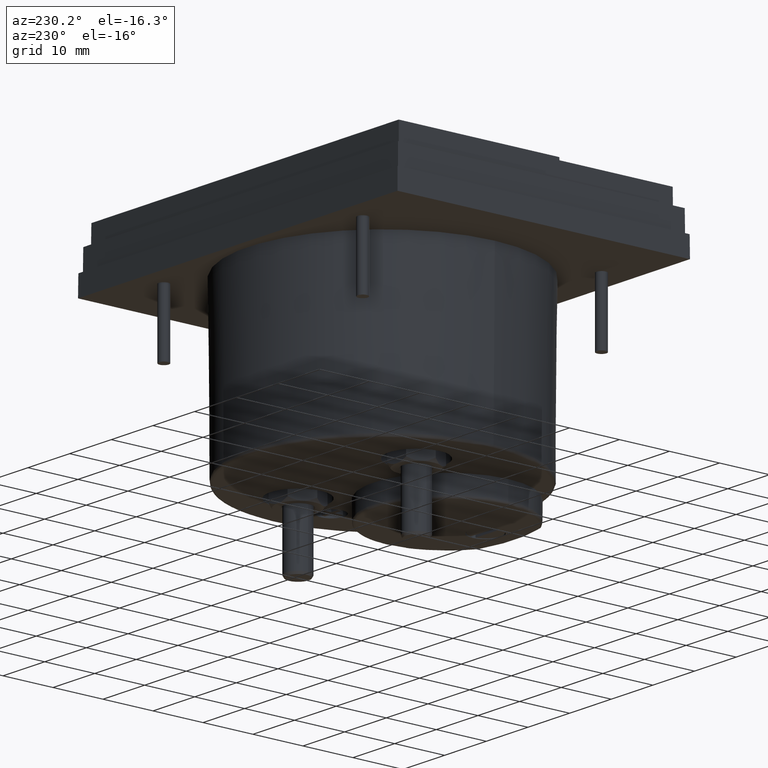
[diagram: clean part render]
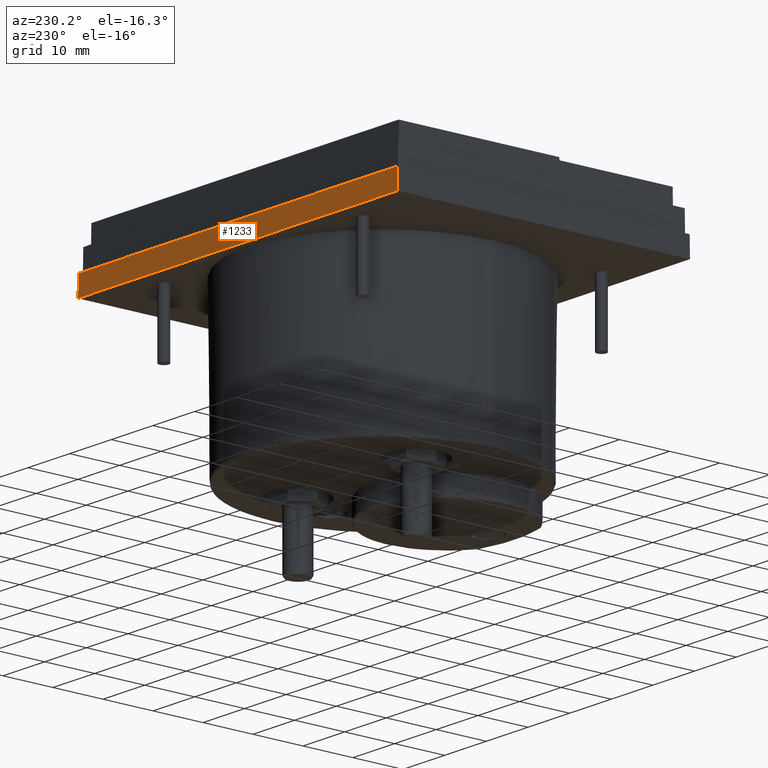
[diagram: same view with one face highlighted and labeled with its STEP entity id]
A machine part, auxiliary view. The second image highlights one B-rep face of the part: STEP entity #1233.
In plain terms, the highlighted planar face has unit normal (-0, 1, 0.0087).
Its self-contained STEP definition (entity closure, byte-faithful):
#65 = ORIENTED_EDGE ( 'NONE', *, *, #501, .F. ) ;
#403 = CARTESIAN_POINT ( 'NONE',  ( 1.509842519685039575, 1.956692913385826849, -0.2732283464566929720 ) ) ;
#501 = EDGE_CURVE ( 'NONE', #948, #4471, #1316, .T. ) ;
#518 = CARTESIAN_POINT ( 'NONE',  ( 1.456692913385826849, 1.956692913385826849, -0.2732283464566925280 ) ) ;
#633 = VECTOR ( 'NONE', #1328, 39.37007874015748854 ) ;
#643 = VERTEX_POINT ( 'NONE', #1941 ) ;
#662 = ORIENTED_EDGE ( 'NONE', *, *, #1028, .T. ) ;
#774 = PLANE ( 'NONE',  #5720 ) ;
#840 = LINE ( 'NONE', #2677, #633 ) ;
#948 = VERTEX_POINT ( 'NONE', #4515 ) ;
#966 = DIRECTION ( 'NONE',  ( 1.000000000000000000, 0.000000000000000000, 0.000000000000000000 ) ) ;
#1028 = EDGE_CURVE ( 'NONE', #948, #643, #3148, .T. ) ;
#1097 = ORIENTED_EDGE ( 'NONE', *, *, #4811, .F. ) ;
#1233 = ADVANCED_FACE ( 'NONE', ( #4105 ), #774, .T. ) ;
#1316 = LINE ( 'NONE', #518, #2622 ) ;
#1328 = DIRECTION ( 'NONE',  ( -0.008726203243943650087, -0.008726203243934976470, 0.9999238504775705971 ) ) ;
#1431 = DIRECTION ( 'NONE',  ( 1.000000000000000000, -0.000000000000000000, 0.000000000000000000 ) ) ;
#1941 = CARTESIAN_POINT ( 'NONE',  ( -1.508468209796730131, 1.955318603497519625, -0.1157480314960626228 ) ) ;
#2591 = DIRECTION ( 'NONE',  ( -0.000000000000000000, 0.9999619230641713097, 0.008726535498373936411 ) ) ;
#2622 = VECTOR ( 'NONE', #1431, 39.37007874015748143 ) ;
#2677 = CARTESIAN_POINT ( 'NONE',  ( 1.509842519685039575, 1.956692913385826849, -0.2732283464566929720 ) ) ;
#2949 = EDGE_CURVE ( 'NONE', #643, #3204, #4301, .T. ) ;
#2998 = EDGE_LOOP ( 'NONE', ( #1097, #65, #662, #5877 ) ) ;
#3041 = VECTOR ( 'NONE', #966, 39.37007874015748143 ) ;
#3148 = LINE ( 'NONE', #4085, #5136 ) ;
#3204 = VERTEX_POINT ( 'NONE', #4513 ) ;
#3268 = CARTESIAN_POINT ( 'NONE',  ( 1.509842519685039575, 1.955318603497518515, -0.1157480314960630252 ) ) ;
#4085 = CARTESIAN_POINT ( 'NONE',  ( -1.509842519685039575, 1.956692913385826849, -0.2732283464566929720 ) ) ;
#4105 = FACE_OUTER_BOUND ( 'NONE', #2998, .T. ) ;
#4263 = CARTESIAN_POINT ( 'NONE',  ( 1.509842519685039575, 1.956692913385826627, -0.2732283464566926390 ) ) ;
#4301 = LINE ( 'NONE', #3268, #3041 ) ;
#4471 = VERTEX_POINT ( 'NONE', #4263 ) ;
#4513 = CARTESIAN_POINT ( 'NONE',  ( 1.508468209796731907, 1.955318603497519625, -0.1157480314960630113 ) ) ;
#4515 = CARTESIAN_POINT ( 'NONE',  ( -1.509842519685039575, 1.956692913385826849, -0.2732283464566928610 ) ) ;
#4714 = DIRECTION ( 'NONE',  ( 0.008726203243959260863, -0.008726203243943650087, 0.9999238504775703751 ) ) ;
#4811 = EDGE_CURVE ( 'NONE', #4471, #3204, #840, .T. ) ;
#5136 = VECTOR ( 'NONE', #4714, 39.37007874015748143 ) ;
#5720 = AXIS2_PLACEMENT_3D ( 'NONE', #403, #2591, #5950 ) ;
#5877 = ORIENTED_EDGE ( 'NONE', *, *, #2949, .T. ) ;
#5950 = DIRECTION ( 'NONE',  ( 0.000000000000000000, -0.008726535498373934677, 0.9999619230641711987 ) ) ;